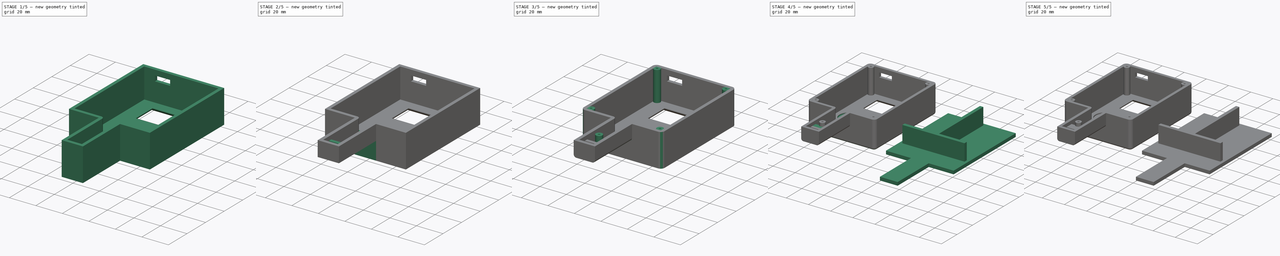
[diagram: build sequence overview — one tinted view per stage of 5, left to right]
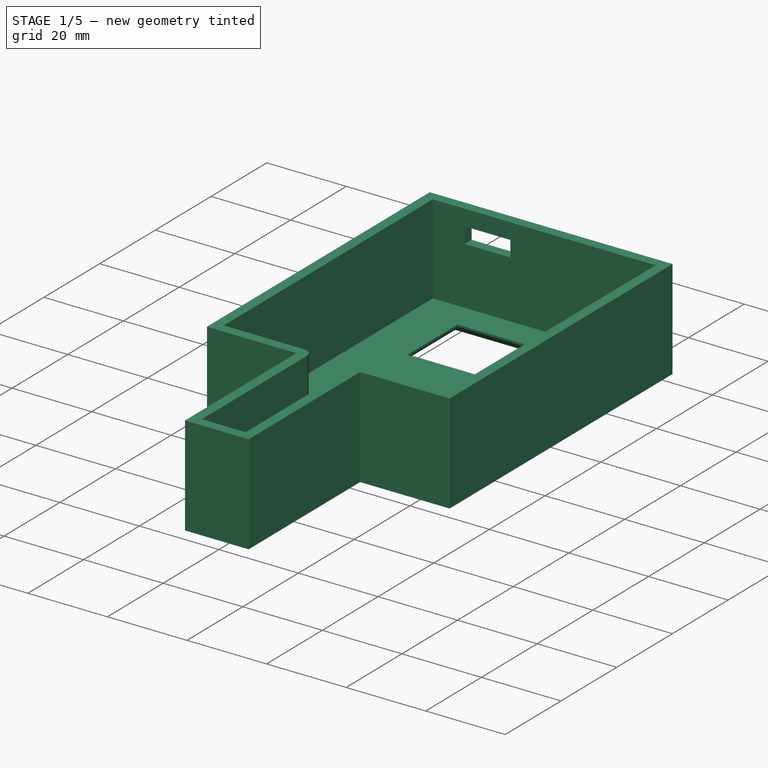
[diagram: stage 1 of 5 — iso view after this stage's code; geometry added in this stage tinted green]
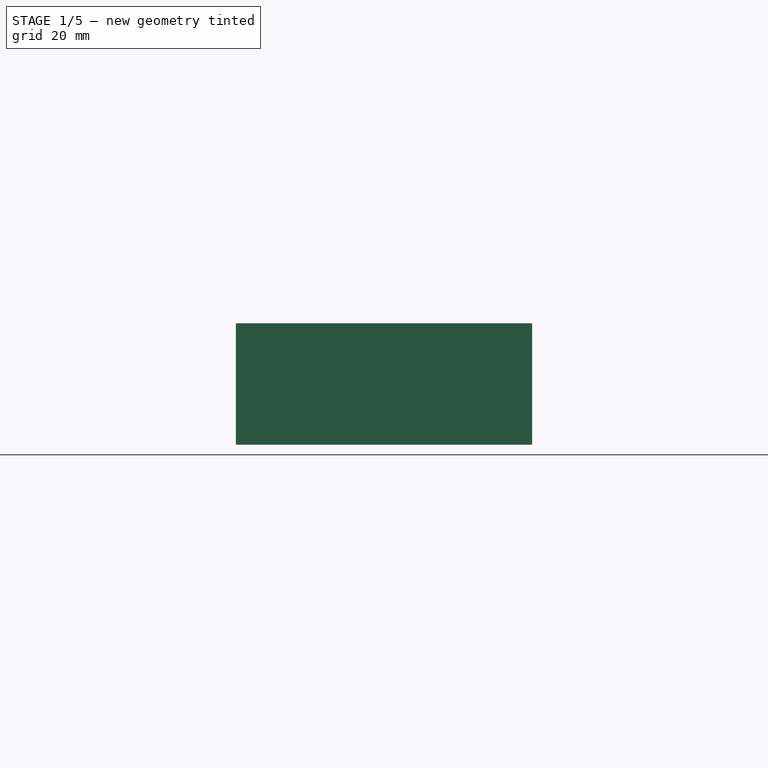
[diagram: stage 1 of 5 — front view after this stage's code; geometry added in this stage tinted green]
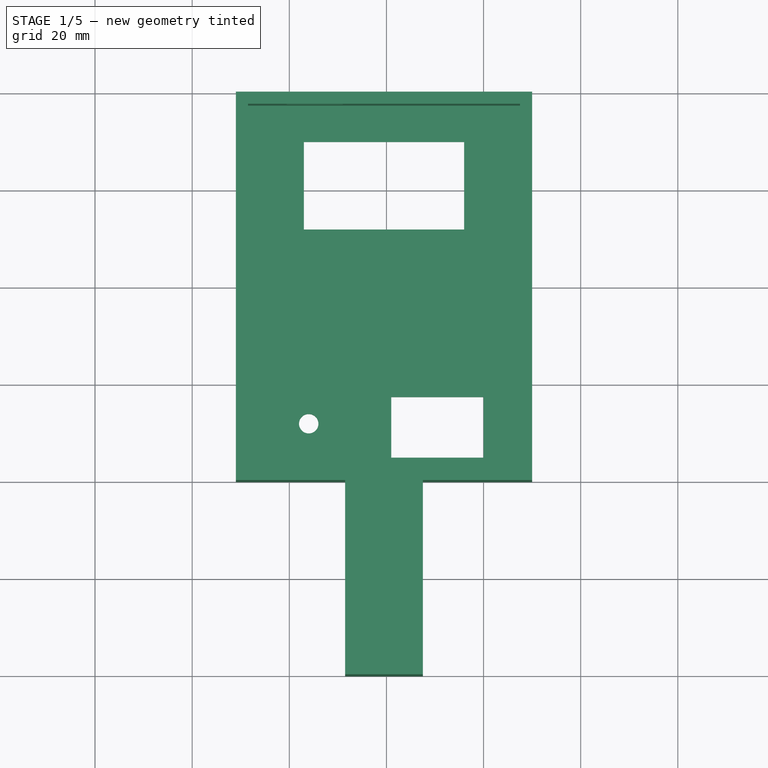
[diagram: stage 1 of 5 — top view after this stage's code; geometry added in this stage tinted green]
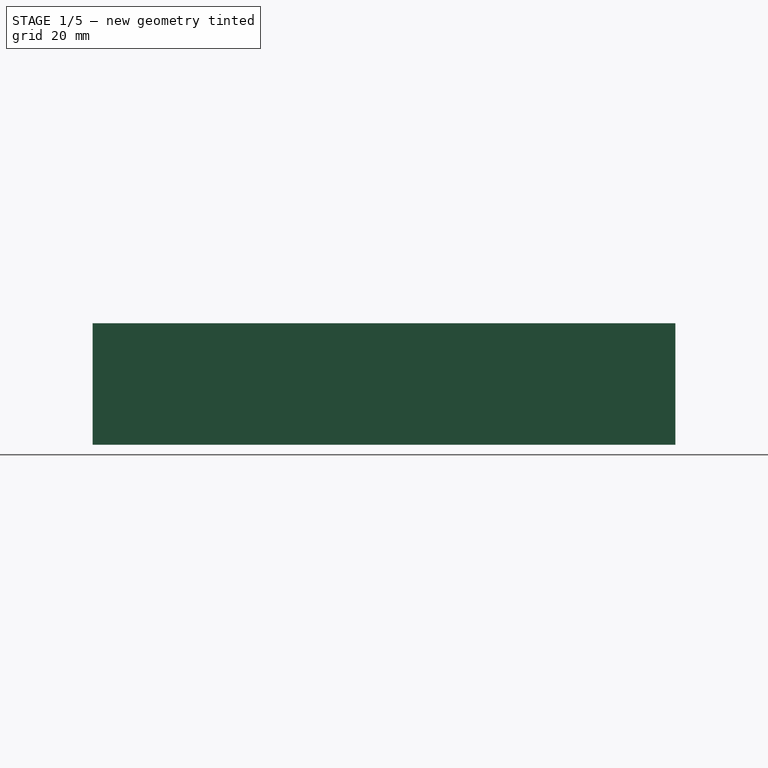
[diagram: stage 1 of 5 — right view after this stage's code; geometry added in this stage tinted green]
FCSTD DOCUMENT  (FreeCAD 0.21R33771 (Git))
Label: mip_tester
License: All rights reserved
LicenseURL: https://en.wikipedia.org/wiki/All_rights_reserved
objects: Sketcher::SketchObject×21, PartDesign::Pad×13, PartDesign::Pocket×11, PartDesign::Fillet×7, PartDesign::Body×4, App::Part×3, PartDesign::Thickness×1, PartDesign::Chamfer×1, PartDesign::ShapeBinder×1, PartDesign::FeatureBase×1, PartDesign::Hole×1
note: 95 computed .brp shape members not serialized (recipe doc carries the construction recipe); baked Part::Feature solids carry a one-line shape summary decoded from their .brp

FEATURE [PartDesign::Body] Body  label="Тело"
  Group = -> [Sketch,Pad,Sketch001,Pad001]
  Origin = -> Origin001
  Tip = -> Pad001
FEATURE [App::Part] Part
  Group = -> [Body]
  Origin = -> Origin
FEATURE [Sketcher::SketchObject] Sketch002
  FullyConstrained = true
  MapMode = 5
  Support = -> [XY_Plane003]
  sketch-geometry (8):
    g0: LineSegment StartX=-10 StartY=80 StartZ=0 EndX=-71 EndY=80 EndZ=0
    g1: LineSegment StartX=-71 StartY=80 StartZ=0 EndX=-71 EndY=0 EndZ=0
    g2: LineSegment StartX=-71 StartY=0 StartZ=0 EndX=-48.5 EndY=0 EndZ=0
    g3: LineSegment StartX=-10 StartY=0 StartZ=0 EndX=-10 EndY=80 EndZ=0
    g4: LineSegment StartX=-48.5 StartY=-40 StartZ=0 EndX=-32.5 EndY=-40 EndZ=0
    g5: LineSegment StartX=-32.5 StartY=-40 StartZ=0 EndX=-32.5 EndY=0 EndZ=0
    g6: LineSegment StartX=-48.5 StartY=0 StartZ=0 EndX=-48.5 EndY=-40 EndZ=0
    g7: LineSegment StartX=-32.5 StartY=0 StartZ=0 EndX=-10 EndY=0 EndZ=0
  constraints (24):
    c: Coincident(g0,g1)
    c: Coincident(g1,g2)
    c: Coincident(g7,g3)
    c: Coincident(g3,g0)
    c: Horizontal(g0)
    c: Horizontal(g2)
    c: Vertical(g1)
    c: Vertical(g3)
    c: DistanceX(g7,g-1) = 10
    c: DistanceY(g7) = 0
    c: DistanceX(g0,g0) = 61
    c: DistanceY(g3,g3) = 80
    c: Coincident(g4,g5)
    c: Coincident(g6,g4)
    c: Horizontal(g4)
    c: Vertical(g5)
    c: Vertical(g6)
    c: DistanceY(g5,g-1) = 0
    c: DistanceX(g6,g5) = 16
    c: Distance(g1,g6) = 22.5
    c: DistanceY(g6,g6) = 40
    c: DistanceY(g4,g-1) = 40
    c: Coincident(g6,g2)
    c: Coincident(g5,g7)
FEATURE [PartDesign::Pad] Pad002
  Direction = (0,0,1)
  Length = 25
  Length2 = 10
  Profile = -> Sketch002
  ReferenceAxis = -> Sketch002 [N_Axis]
  Type = 0
FEATURE [PartDesign::Thickness] Thickness
  Base = -> Pad002 [Face10]
  BaseFeature = -> Pad002
  Intersection = false
  Join = 0
  Mode = 0
  Reversed = true
  SupportTransform = false
  Value = 2.5
FEATURE [Sketcher::SketchObject] Sketch003
  ExternalGeometry = -> [Thickness]
  FullyConstrained = true
  MapMode = 5
  Placement = pos=(0,0,0) rot=(1,0,0;3.14159rad)
  Support = -> [Thickness]
  sketch-geometry (4):
    g0: LineSegment StartX=-57 StartY=-52 StartZ=0 EndX=-24 EndY=-52 EndZ=0
    g1: LineSegment StartX=-24 StartY=-52 StartZ=0 EndX=-24 EndY=-70 EndZ=0
    g2: LineSegment StartX=-24 StartY=-70 StartZ=0 EndX=-57 EndY=-70 EndZ=0
    g3: LineSegment StartX=-57 StartY=-70 StartZ=0 EndX=-57 EndY=-52 EndZ=0
  constraints (12):
    c: Coincident(g0,g1)
    c: Coincident(g1,g2)
    c: Coincident(g2,g3)
    c: Coincident(g3,g0)
    c: Horizontal(g0)
    c: Horizontal(g2)
    c: Vertical(g1)
    c: Vertical(g3)
    c: DistanceX(g0,g0) = 33
    c: DistanceY(g1,g1) = 18
    c: Distance(g2,g-3) = 14
    c: Distance(g2,g-4) = 10
FEATURE [PartDesign::Pocket] Pocket
  BaseFeature = -> Thickness
  Direction = (0,0,1)
  Length = 5
  Length2 = 5
  Profile = -> Sketch003
  ReferenceAxis = -> Sketch003 [N_Axis]
  Type = 0
FEATURE [PartDesign::Chamfer] Chamfer
  Angle = 45
  Base = -> Pocket [Edge18,Edge19,Edge16,Edge17]
  BaseFeature = -> Pocket
  ChamferType = 0
  FlipDirection = false
  Size = 2
  Size2 = 1
  SupportTransform = false
  UseAllEdges = false
FEATURE [Sketcher::SketchObject] Sketch004
  ExternalGeometry = -> [Chamfer]
  FullyConstrained = true
  MapMode = 5
  Placement = pos=(0,0,0) rot=(1,0,0;3.14159rad)
  Support = -> [Chamfer]
  sketch-geometry (4):
    g0: LineSegment StartX=-20 StartY=-17.5 StartZ=0 EndX=-39 EndY=-17.5 EndZ=0
    g1: LineSegment StartX=-39 StartY=-17.5 StartZ=0 EndX=-39 EndY=-5 EndZ=0
    g2: LineSegment StartX=-39 StartY=-5 StartZ=0 EndX=-20 EndY=-5 EndZ=0
    g3: LineSegment StartX=-20 StartY=-5 StartZ=0 EndX=-20 EndY=-17.5 EndZ=0
  constraints (12):
    c: Coincident(g0,g1)
    c: Coincident(g1,g2)
    c: Coincident(g2,g3)
    c: Coincident(g3,g0)
    c: Horizontal(g0)
    c: Horizontal(g2)
    c: Vertical(g1)
    c: Vertical(g3)
    c: DistanceX(g2,g2) = 19
    c: DistanceY(g1,g1) = 12.5
    c: Distance(g2,g-3) = 10
    c: Distance(g2,g-4) = 5
FEATURE [PartDesign::Pocket] Pocket001  label="on/off"
  BaseFeature = -> Chamfer
  Direction = (0,0,1)
  Length = 5
  Length2 = 5
  Profile = -> Sketch004
  ReferenceAxis = -> Sketch004 [N_Axis]
  Type = 0
FEATURE [Sketcher::SketchObject] Sketch005
  ExternalGeometry = -> [Pocket001]
  FullyConstrained = true
  MapMode = 5
  Placement = pos=(0,0,0) rot=(1,0,0;3.14159rad)
  Support = -> [Pocket001]
  sketch-geometry (1):
    g0: Circle CenterX=-56 CenterY=-12 CenterZ=0 NormalX=0 NormalY=0 NormalZ=1 AngleXU=0 Radius=2
  constraints (3):
    c: Diameter(g0) = 4
    c: Distance(g0,g-3) = 15
    c: Distance(g0,g-4) = 12
FEATURE [PartDesign::Pocket] Pocket002  label="button"
  BaseFeature = -> Pocket001
  Direction = (0,0,1)
  Length = 5
  Length2 = 5
  Profile = -> Sketch005
  ReferenceAxis = -> Sketch005 [N_Axis]
  Type = 0
FEATURE [Sketcher::SketchObject] Sketch006
  ExternalGeometry = -> [Pocket002]
  FullyConstrained = true
  MapMode = 5
  Placement = pos=(0,77.5,0) rot=(1,0,0;1.5708rad)
  Support = -> [Pocket002]
  sketch-geometry (4):
    g0: LineSegment StartX=-60.5 StartY=21 StartZ=0 EndX=-49 EndY=21 EndZ=0
    g1: LineSegment StartX=-49 StartY=21 StartZ=0 EndX=-49 EndY=17 EndZ=0
    g2: LineSegment StartX=-49 StartY=17 StartZ=0 EndX=-60.5 EndY=17 EndZ=0
    g3: LineSegment StartX=-60.5 StartY=17 StartZ=0 EndX=-60.5 EndY=21 EndZ=0
  constraints (12):
    c: Coincident(g0,g1)
    c: Coincident(g1,g2)
    c: Coincident(g2,g3)
    c: Coincident(g3,g0)
    c: Horizontal(g0)
    c: Horizontal(g2)
    c: Vertical(g1)
    c: Vertical(g3)
    c: DistanceX(g0,g0) = 11.5
    c: DistanceY(g1,g1) = 4
    c: Distance(g0,g-3) = 4
    c: Distance(g0,g-5) = 8
FEATURE [PartDesign::Pocket] Pocket003  label="programPort"
  BaseFeature = -> Pocket002
  Direction = (0,1,-2e-16)
  Length = 5
  Length2 = 5
  Profile = -> Sketch006
  ReferenceAxis = -> Sketch006 [N_Axis]
  Type = 0
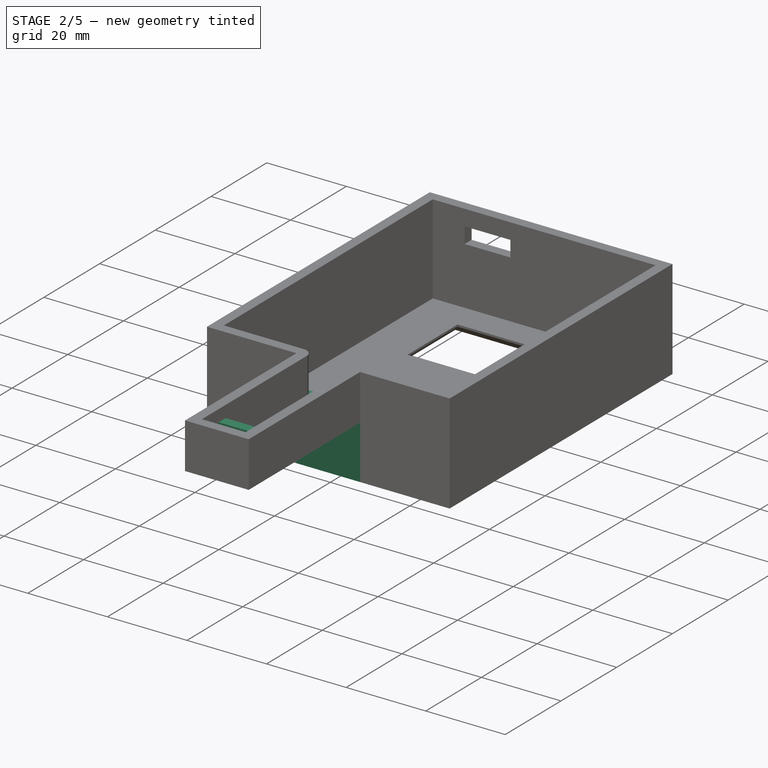
[diagram: stage 2 of 5 — iso view after this stage's code; geometry added in this stage tinted green]
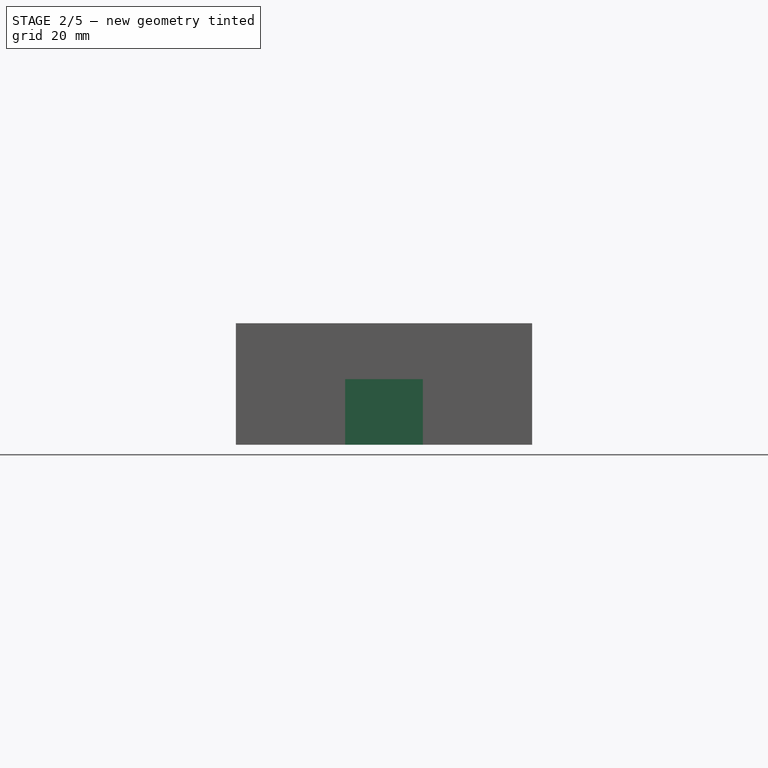
[diagram: stage 2 of 5 — front view after this stage's code; geometry added in this stage tinted green]
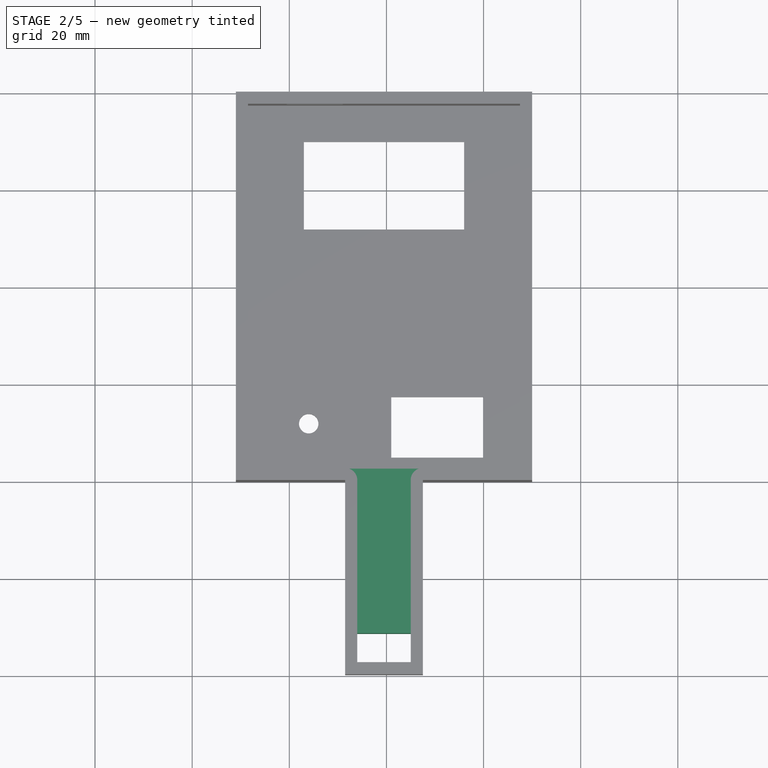
[diagram: stage 2 of 5 — top view after this stage's code; geometry added in this stage tinted green]
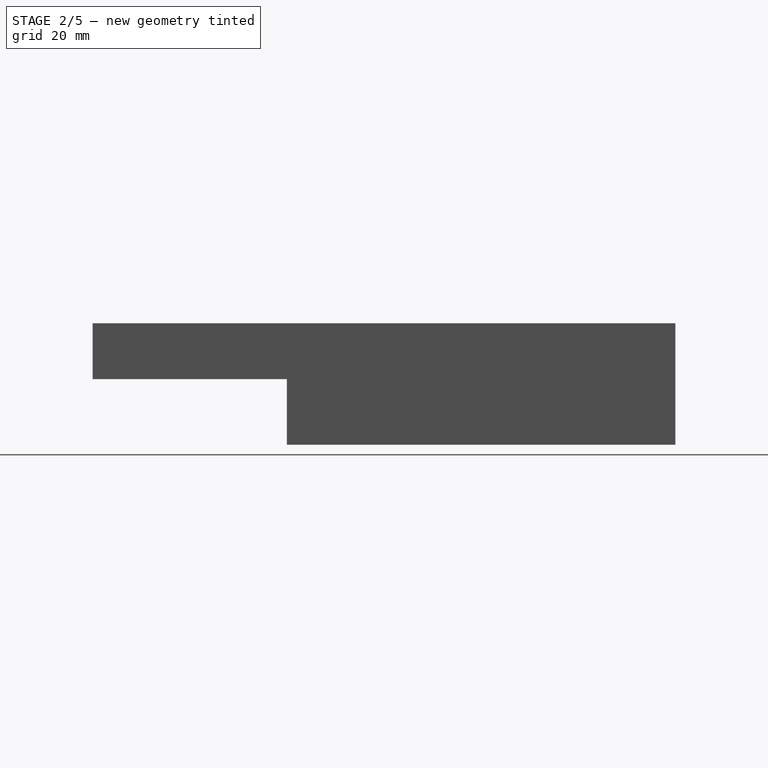
[diagram: stage 2 of 5 — right view after this stage's code; geometry added in this stage tinted green]
FEATURE [Sketcher::SketchObject] Sketch007
  ExternalGeometry = -> [Pocket003]
  FullyConstrained = true
  MapMode = 5
  Placement = pos=(0,0,0) rot=(1,0,0;3.14159rad)
  Support = -> [Pocket003]
  sketch-geometry (1):
    g0: Circle CenterX=-56 CenterY=-33 CenterZ=0 NormalX=0 NormalY=0 NormalZ=1 AngleXU=0 Radius=8.75
  constraints (3):
    c: Distance(g0,g-4) = 47
    c: Diameter(g0) = 17.5
    c: Distance(g0,g-3) = 15
FEATURE [PartDesign::Pocket] Pocket004
  BaseFeature = -> Pocket003
  Direction = (0,0,1)
  Length = 1
  Length2 = 5
  Profile = -> Sketch007
  ReferenceAxis = -> Sketch007 [N_Axis]
  Type = 0
FEATURE [Sketcher::SketchObject] Sketch010
  ExternalGeometry = -> [Pad003]
  FullyConstrained = true
  MapMode = 5
  Placement = pos=(0,0,3) rot=(0,0,1;0rad)
  Support = -> [Pad003]
  sketch-geometry (8):
    g0: LineSegment StartX=30.5 StartY=77.5 StartZ=0 EndX=33.5 EndY=77.5 EndZ=0
    g1: LineSegment StartX=33.5 StartY=77.5 StartZ=0 EndX=33.5 EndY=20.5 EndZ=0
    g2: LineSegment StartX=30.5 StartY=20.5 StartZ=0 EndX=30.5 EndY=77.5 EndZ=0
    g3: LineSegment StartX=2.5 StartY=17.5 StartZ=0 EndX=58.5 EndY=17.5 EndZ=0
    g4: LineSegment StartX=58.5 StartY=17.5 StartZ=0 EndX=58.5 EndY=20.5 EndZ=0
    g5: LineSegment StartX=58.5 StartY=20.5 StartZ=0 EndX=33.5 EndY=20.5 EndZ=0
    g6: LineSegment StartX=2.5 StartY=20.5 StartZ=0 EndX=2.5 EndY=17.5 EndZ=0
    g7: LineSegment StartX=2.5 StartY=20.5 StartZ=0 EndX=30.5 EndY=20.5 EndZ=0
  constraints (24):
    c: Coincident(g0,g1)
    c: Coincident(g2,g0)
    c: Horizontal(g0)
    c: Vertical(g1)
    c: Vertical(g2)
    c: Distance(g2,g-2) = 30.5
    c: Distance(g2,g-5) = 20.5
    c: DistanceY(g2,g2) = 57
    c: DistanceX(g0,g0) = 3
    c: Coincident(g3,g4)
    c: Coincident(g4,g5)
    c: Coincident(g6,g3)
    c: Horizontal(g3)
    c: Horizontal(g5)
    c: Vertical(g4)
    c: Vertical(g6)
    c: DistanceY(g4,g4) = 3
    c: DistanceY(g-5,g3) = 17.5
    c: DistanceX(g-1,g3) = 2.5
    c: Distance(g3) = 56
    c: Coincident(g7,g6)
    c: Coincident(g7,g2)
    c: Horizontal(g7)
    c: Coincident(g1,g5)
FEATURE [Sketcher::SketchObject] Sketch011
  ExternalGeometry = -> [Pocket004]
  FullyConstrained = true
  MapMode = 5
  Placement = pos=(-48.5,0,0) rot=(0.57735,-0.57735,-0.57735;2.0944rad)
  Support = -> [Pocket004]
  sketch-geometry (4):
    g0: LineSegment StartX=3.65219e-11 StartY=16 StartZ=0 EndX=40 EndY=16 EndZ=0
    g1: LineSegment StartX=40 StartY=16 StartZ=0 EndX=40 EndY=0 EndZ=0
    g2: LineSegment StartX=40 StartY=0 StartZ=0 EndX=3.65219e-11 EndY=0 EndZ=0
    g3: LineSegment StartX=3.65219e-11 StartY=0 StartZ=0 EndX=3.65219e-11 EndY=16 EndZ=0
  constraints (11):
    c: Coincident(g0,g1)
    c: Coincident(g1,g2)
    c: Coincident(g2,g3)
    c: Coincident(g3,g0)
    c: Horizontal(g0)
    c: Horizontal(g2)
    c: Vertical(g1)
    c: Vertical(g3)
    c: Coincident(g1,g-4)
    c: Equal(g2,g-4)
    c: DistanceY(g1,g1) = 16
FEATURE [PartDesign::Pocket] Pocket005
  BaseFeature = -> Pocket004
  Direction = (1,0,0)
  Length = 5
  Length2 = 5
  Profile = -> Sketch011
  ReferenceAxis = -> Sketch011 [N_Axis]
  Type = 1
FEATURE [Sketcher::SketchObject] Sketch012
  ExternalGeometry = -> [Pocket005]
  FullyConstrained = true
  MapMode = 5
  Placement = pos=(0,0,16) rot=(1,0,0;3.14159rad)
  Support = -> [Pocket005]
  sketch-geometry (4):
    g0: LineSegment StartX=-48.5 StartY=3.65219e-11 StartZ=0 EndX=-32.5 EndY=3.65219e-11 EndZ=0
    g1: LineSegment StartX=-32.5 StartY=3.65219e-11 StartZ=0 EndX=-32.5 EndY=40 EndZ=0
    g2: LineSegment StartX=-32.5 StartY=40 StartZ=0 EndX=-48.5 EndY=40 EndZ=0
    g3: LineSegment StartX=-48.5 StartY=40 StartZ=0 EndX=-48.5 EndY=3.65219e-11 EndZ=0
  constraints (11):
    c: Coincident(g0,g1)
    c: Coincident(g1,g2)
    c: Coincident(g2,g3)
    c: Coincident(g3,g0)
    c: Horizontal(g0)
    c: Horizontal(g2)
    c: Vertical(g1)
    c: Vertical(g3)
    c: Coincident(g1,g-4)
    c: Equal(g2,g-4)
    c: Equal(g3,g-5)
FEATURE [PartDesign::Pad] Pad005
  BaseFeature = -> Pocket005
  Direction = (0,0,-1)
  Length = 2.5
  Length2 = 10
  Profile = -> Sketch012
  ReferenceAxis = -> Sketch012 [N_Axis]
  Type = 0
FEATURE [Sketcher::SketchObject] Sketch013
  ExternalGeometry = -> [Pad005]
  FullyConstrained = true
  MapMode = 5
  Placement = pos=(0,-3.65219e-11,0) rot=(1,0,0;1.5708rad)
  Support = -> [Pad005]
  sketch-geometry (4):
    g0: LineSegment StartX=-48.5 StartY=13.5 StartZ=0 EndX=-32.5 EndY=13.5 EndZ=0
    g1: LineSegment StartX=-32.5 StartY=13.5 StartZ=0 EndX=-32.5 EndY=0 EndZ=0
    g2: LineSegment StartX=-32.5 StartY=0 StartZ=0 EndX=-48.5 EndY=0 EndZ=0
    g3: LineSegment StartX=-48.5 StartY=0 StartZ=0 EndX=-48.5 EndY=13.5 EndZ=0
  constraints (11):
    c: Coincident(g0,g1)
    c: Coincident(g1,g2)
    c: Coincident(g2,g3)
    c: Coincident(g3,g0)
    c: Horizontal(g0)
    c: Horizontal(g2)
    c: Vertical(g1)
    c: Vertical(g3)
    c: Coincident(g2,g-8)
    c: Equal(g2,g-8)
    c: Equal(g1,g-3)
FEATURE [PartDesign::Pad] Pad006
  BaseFeature = -> Pad005
  Direction = (0,-1,2e-16)
  Length = 2.5
  Length2 = 10
  Profile = -> Sketch013
  ReferenceAxis = -> Sketch013 [N_Axis]
  Reversed = true
  Type = 0
FEATURE [PartDesign::Pad] Pad007
  BaseFeature = -> Pad006
  Direction = (0,2e-16,1)
  Length = 2.5
  Length2 = 10
  Profile = -> Pad006 [Face50]
  Type = 0
FEATURE [Sketcher::SketchObject] Sketch014
  ExternalGeometry = -> [Pad007]
  FullyConstrained = true
  MapMode = 5
  Placement = pos=(0,0,13.5) rot=(1,0,0;3.14159rad)
  Support = -> [Pad007]
  sketch-geometry (4):
    g0: LineSegment StartX=-46 StartY=37.5 StartZ=0 EndX=-35 EndY=37.5 EndZ=0
    g1: LineSegment StartX=-35 StartY=37.5 StartZ=0 EndX=-35 EndY=31.5 EndZ=0
    g2: LineSegment StartX=-35 StartY=31.5 StartZ=0 EndX=-46 EndY=31.5 EndZ=0
    g3: LineSegment StartX=-46 StartY=31.5 StartZ=0 EndX=-46 EndY=37.5 EndZ=0
  constraints (12):
    c: Coincident(g0,g1)
    c: Coincident(g1,g2)
    c: Coincident(g2,g3)
    c: Coincident(g3,g0)
    c: Horizontal(g0)
    c: Horizontal(g2)
    c: Vertical(g1)
    c: Vertical(g3)
    c: DistanceX(g2,g2) = 11
    c: DistanceY(g1,g1) = 6
    c: Distance(g0,g-5) = 2.5
    c: Distance(g0,g-3) = 2.5
FEATURE [PartDesign::Pocket] Pocket006
  BaseFeature = -> Pad007
  Direction = (0,0,1)
  Length = 2.5
  Length2 = 5
  Profile = -> Sketch014
  ReferenceAxis = -> Sketch014 [N_Axis]
  Type = 0
FEATURE [Sketcher::SketchObject] Sketch015
  ExternalGeometry = -> [Pocket006]
  FullyConstrained = true
  MapMode = 5
  Placement = pos=(0,0,16) rot=(0,0,1;0rad)
  Support = -> [Pocket006]
  sketch-geometry (4):
    g0: LineSegment StartX=-46 StartY=-29 StartZ=0 EndX=-35 EndY=-29 EndZ=0
    g1: LineSegment StartX=-35 StartY=-29 StartZ=0 EndX=-35 EndY=-31.5 EndZ=0
    g2: LineSegment StartX=-35 StartY=-31.5 StartZ=0 EndX=-46 EndY=-31.5 EndZ=0
    g3: LineSegment StartX=-46 StartY=-31.5 StartZ=0 EndX=-46 EndY=-29 EndZ=0
  constraints (11):
    c: Coincident(g0,g1)
    c: Coincident(g1,g2)
    c: Coincident(g2,g3)
    c: Coincident(g3,g0)
    c: Horizontal(g0)
    c: Horizontal(g2)
    c: Vertical(g1)
    c: Vertical(g3)
    c: Coincident(g1,g-4)
    c: Equal(g2,g-4)
    c: DistanceY(g1,g1) = 2.5
FEATURE [PartDesign::Pad] Pad008
  BaseFeature = -> Pocket006
  Direction = (0,0,1)
  Length = 6
  Length2 = 10
  Profile = -> Sketch015
  ReferenceAxis = -> Sketch015 [N_Axis]
  Type = 0
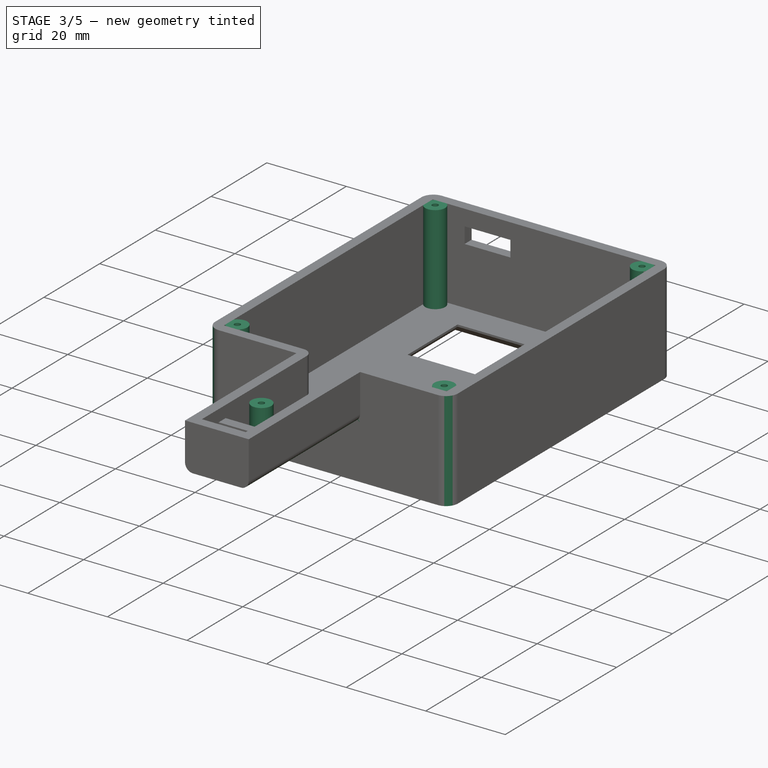
[diagram: stage 3 of 5 — iso view after this stage's code; geometry added in this stage tinted green]
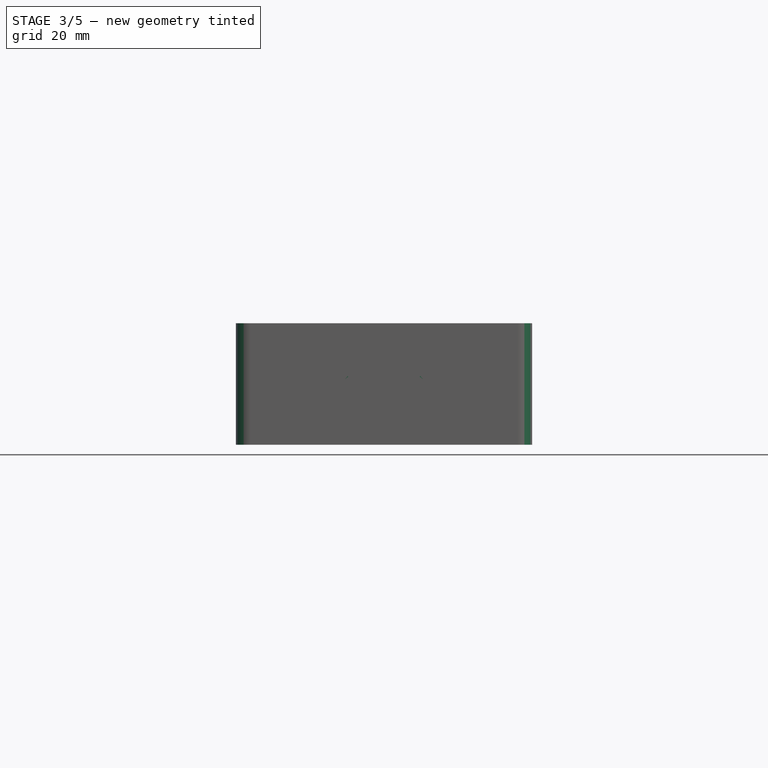
[diagram: stage 3 of 5 — front view after this stage's code; geometry added in this stage tinted green]
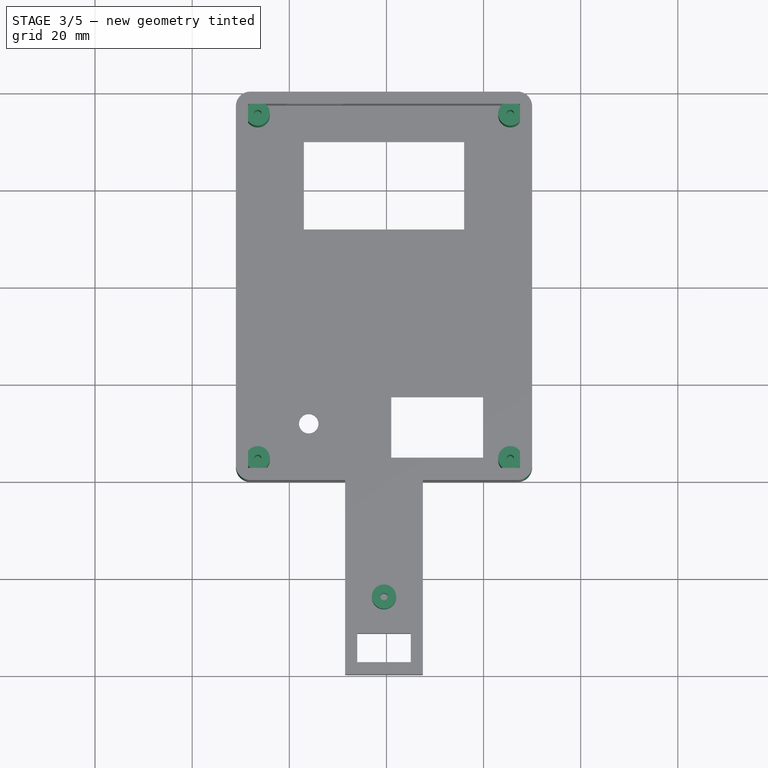
[diagram: stage 3 of 5 — top view after this stage's code; geometry added in this stage tinted green]
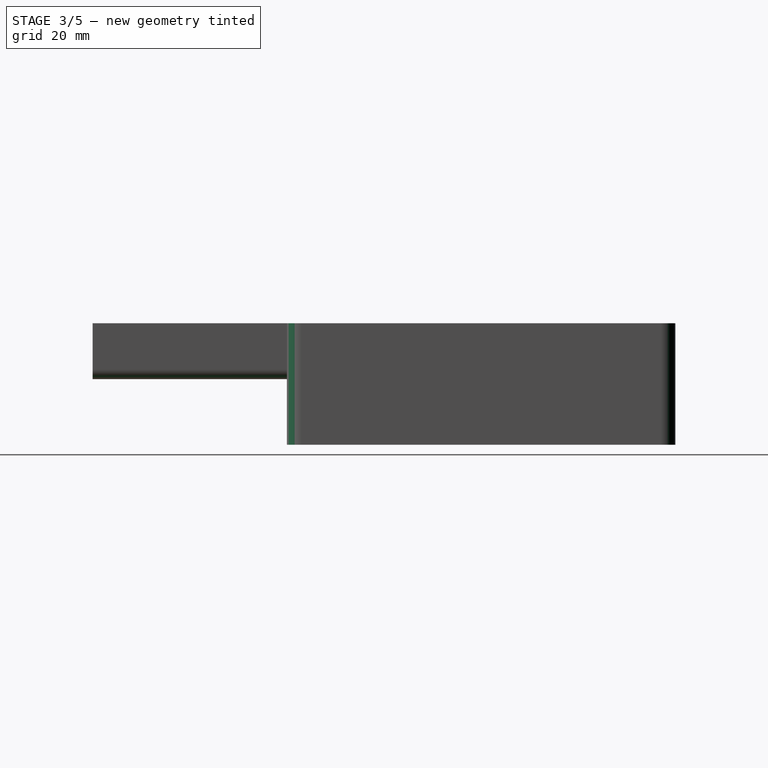
[diagram: stage 3 of 5 — right view after this stage's code; geometry added in this stage tinted green]
FEATURE [Sketcher::SketchObject] Sketch016
  ExternalGeometry = -> [Pad008]
  FullyConstrained = true
  MapMode = 5
  Placement = pos=(0,0,2.5) rot=(0,0,1;0rad)
  Support = -> [Pad008]
  sketch-geometry (4):
    g0: Circle CenterX=-66.5 CenterY=75.5 CenterZ=0 NormalX=0 NormalY=0 NormalZ=1 AngleXU=0 Radius=2.5
    g1: Circle CenterX=-14.5 CenterY=75.5 CenterZ=0 NormalX=0 NormalY=0 NormalZ=1 AngleXU=0 Radius=2.5
    g2: Circle CenterX=-66.5 CenterY=4.5 CenterZ=0 NormalX=0 NormalY=0 NormalZ=1 AngleXU=0 Radius=2.5
    g3: Circle CenterX=-14.5 CenterY=4.5 CenterZ=0 NormalX=0 NormalY=0 NormalZ=1 AngleXU=0 Radius=2.5
  constraints (12):
    c: Diameter(g0) = 5
    c: Diameter(g1) = 5
    c: Diameter(g3) = 5
    c: Diameter(g2) = 5
    c: Distance(g0,g-8) = 2
    c: Distance(g0,g-9) = 2
    c: Distance(g1,g-10) = 2
    c: Distance(g1,g-8) = 2
    c: Distance(g3,g-10) = 2
    c: Distance(g3,g-11) = 2
    c: Distance(g2,g-9) = 2
    c: Distance(g2,g-12) = 2
FEATURE [PartDesign::Pad] Pad009
  BaseFeature = -> Pad008
  Direction = (0,0,1)
  Length = 22.5
  Length2 = 10
  Profile = -> Sketch016
  ReferenceAxis = -> Sketch016 [N_Axis]
  Type = 0
FEATURE [Sketcher::SketchObject] Sketch017
  ExternalGeometry = -> [Pad009]
  FullyConstrained = true
  MapMode = 5
  Placement = pos=(0,0,25) rot=(0,0,1;0rad)
  Support = -> [Pad009]
  sketch-geometry (4):
    g0: Circle CenterX=-66.5 CenterY=4.5 CenterZ=0 NormalX=0 NormalY=0 NormalZ=1 AngleXU=0 Radius=0.75
    g1: Circle CenterX=-14.5 CenterY=4.5 CenterZ=0 NormalX=0 NormalY=0 NormalZ=1 AngleXU=0 Radius=0.75
    g2: Circle CenterX=-14.5 CenterY=75.5 CenterZ=0 NormalX=0 NormalY=0 NormalZ=1 AngleXU=0 Radius=0.75
    g3: Circle CenterX=-66.5 CenterY=75.5 CenterZ=0 NormalX=0 NormalY=0 NormalZ=1 AngleXU=0 Radius=0.75
  constraints (8):
    c: Diameter(g3) = 1.5
    c: Equal(g3,g2)
    c: Equal(g2,g1)
    c: Equal(g1,g0)
    c: Coincident(g3,g-3)
    c: Coincident(g0,g-6)
    c: Coincident(g1,g-5)
    c: Coincident(g2,g-4)
FEATURE [PartDesign::Pocket] Pocket007
  BaseFeature = -> Pad009
  Direction = (0,0,-1)
  Length = 18
  Length2 = 5
  Profile = -> Sketch017
  ReferenceAxis = -> Sketch017 [N_Axis]
  Type = 0
FEATURE [Sketcher::SketchObject] Sketch018
  ExternalGeometry = -> [Pocket007]
  FullyConstrained = true
  MapMode = 5
  Placement = pos=(0,0,16) rot=(0,0,1;0rad)
  Support = -> [Pocket007]
  sketch-geometry (2):
    g0: Circle CenterX=-40.5 CenterY=-24 CenterZ=0 NormalX=0 NormalY=0 NormalZ=1 AngleXU=0 Radius=2.5
    g1: Circle CenterX=-40.5 CenterY=-24 CenterZ=0 NormalX=0 NormalY=0 NormalZ=1 AngleXU=0 Radius=0.75
  constraints (6):
    c: Diameter(g0) = 5
    c: Distance(g0,g-4) = 5
    c: Distance(g0,g-3) = 5.5
    c: Distance(g-4) = 11
    c: Diameter(g1) = 1.5
    c: Coincident(g1,g0)
FEATURE [PartDesign::Pad] Pad010
  BaseFeature = -> Pocket007
  Direction = (0,0,1)
  Length = 9
  Length2 = 10
  Profile = -> Sketch018
  ReferenceAxis = -> Sketch018 [N_Axis]
  Type = 0
FEATURE [PartDesign::Fillet] Fillet001
  Base = -> Pad010 [Edge29]
  BaseFeature = -> Pad010
  Radius = 3
  SupportTransform = false
  UseAllEdges = false
FEATURE [PartDesign::Fillet] Fillet002
  Base = -> Fillet001 [Edge29]
  BaseFeature = -> Fillet001
  Radius = 3
  SupportTransform = false
  UseAllEdges = false
FEATURE [PartDesign::Fillet] Fillet003
  Base = -> Fillet002 [Edge32,Edge34,Edge35]
  BaseFeature = -> Fillet002
  Radius = 3
  SupportTransform = false
  UseAllEdges = false
FEATURE [PartDesign::Body] Body002  label="Тело002"
  BaseFeature = -> Pad004
  Group = -> [BaseFeature,Sketch019,Pocket008,Hole,Fillet,Fillet004]
  Origin = -> Origin005
  Tip = -> Fillet004
FEATURE [App::Part] Part002
  Group = -> [Body002]
  Origin = -> Origin004
  Placement = pos=(4,0,0) rot=(0,0,1;0rad)
FEATURE [PartDesign::Fillet] Fillet005
  Base = -> Fillet003 [Edge113,Edge124]
  BaseFeature = -> Fillet003
  Radius = 2
  SupportTransform = false
  UseAllEdges = false
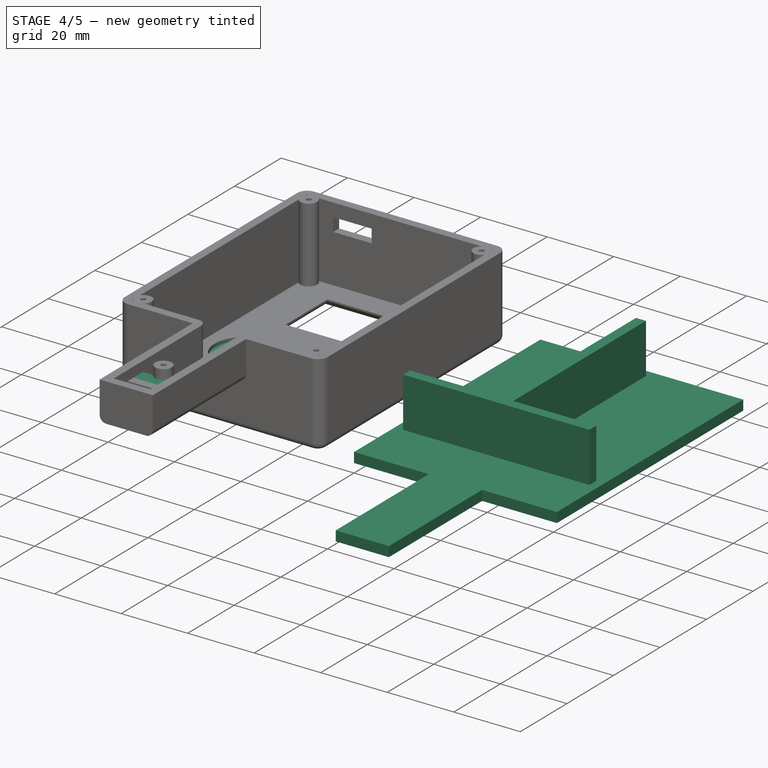
[diagram: stage 4 of 5 — iso view after this stage's code; geometry added in this stage tinted green]
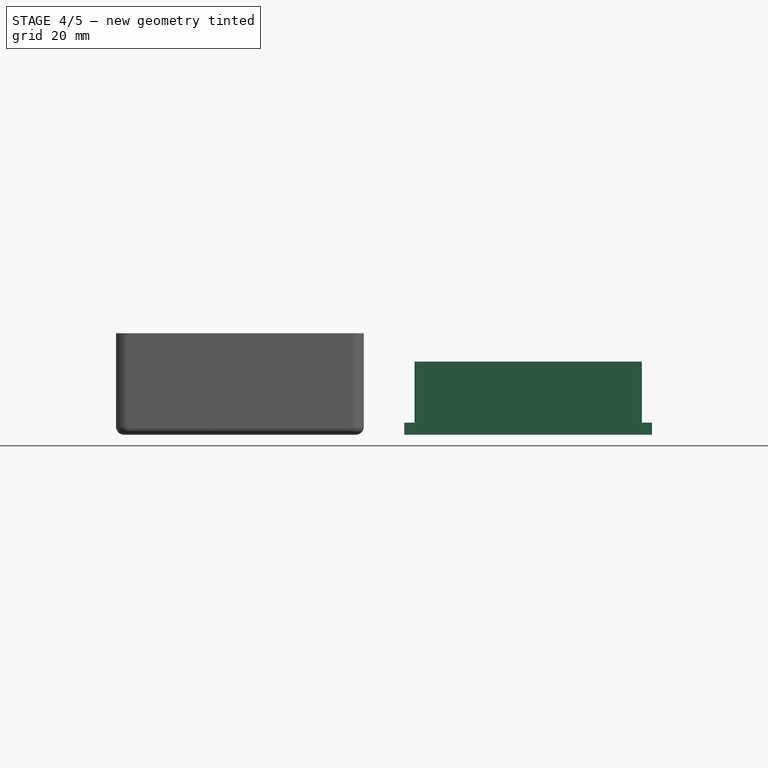
[diagram: stage 4 of 5 — front view after this stage's code; geometry added in this stage tinted green]
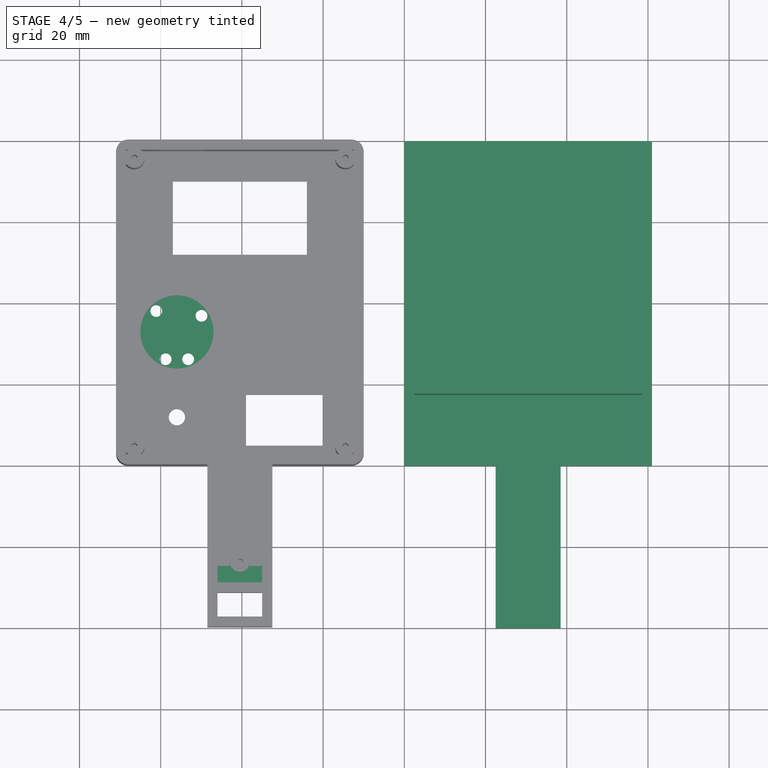
[diagram: stage 4 of 5 — top view after this stage's code; geometry added in this stage tinted green]
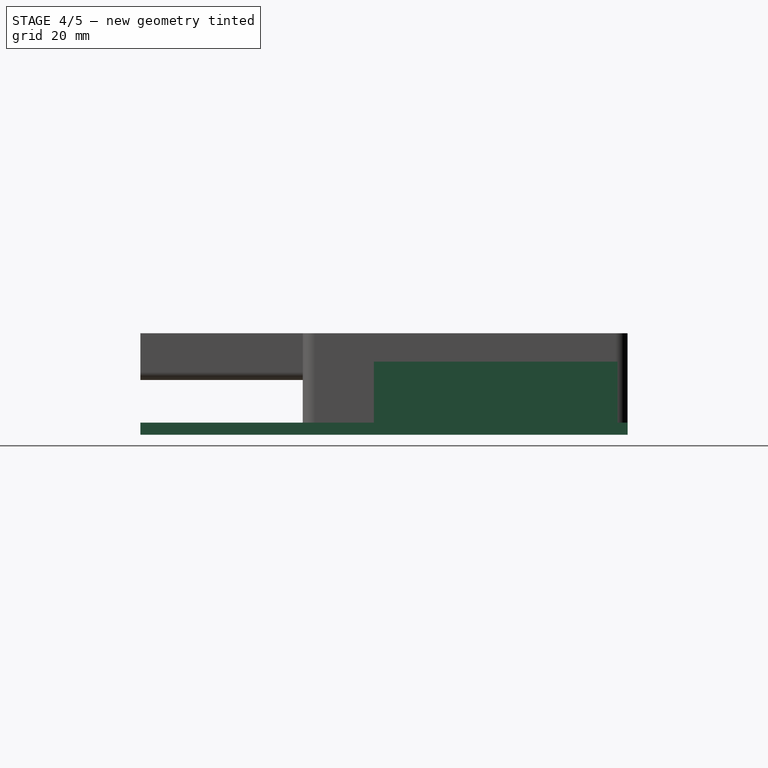
[diagram: stage 4 of 5 — right view after this stage's code; geometry added in this stage tinted green]
FEATURE [Sketcher::SketchObject] Sketch009
  FullyConstrained = true
  MapMode = 5
  Support = -> [XY_Plane006]
  sketch-geometry (8):
    g0: LineSegment StartX=0 StartY=0 StartZ=0 EndX=22.5 EndY=0 EndZ=0
    g1: LineSegment StartX=61 StartY=0 StartZ=0 EndX=61 EndY=80 EndZ=0
    g2: LineSegment StartX=61 StartY=80 StartZ=0 EndX=0 EndY=80 EndZ=0
    g3: LineSegment StartX=0 StartY=80 StartZ=0 EndX=0 EndY=0 EndZ=0
    g4: LineSegment StartX=22.5 StartY=-40 StartZ=0 EndX=38.5 EndY=-40 EndZ=0
    g5: LineSegment StartX=38.5 StartY=-40 StartZ=0 EndX=38.5 EndY=0 EndZ=0
    g6: LineSegment StartX=22.5 StartY=0 StartZ=0 EndX=22.5 EndY=-40 EndZ=0
    g7: LineSegment StartX=38.5 StartY=0 StartZ=0 EndX=61 EndY=0 EndZ=0
  constraints (24):
    c: Coincident(g7,g1)
    c: Coincident(g1,g2)
    c: Coincident(g2,g3)
    c: Coincident(g3,g0)
    c: Horizontal(g0)
    c: Horizontal(g2)
    c: Vertical(g1)
    c: Vertical(g3)
    c: Coincident(g0,g-1)
    c: Distance(g2) = 61
    c: Distance(g1) = 80
    c: Coincident(g4,g5)
    c: Coincident(g6,g4)
    c: Horizontal(g4)
    c: Vertical(g5)
    c: Vertical(g6)
    c: Distance(g4) = 16
    c: Distance(g5) = 40
    c: DistanceX(g-2,g4) = 22.5
    c: Coincident(g7,g5)
    c: DistanceY(g5,g1) = 0
    c: DistanceY(g0,g5) = 0
    c: DistanceX(g0,g4) = 0
    c: DistanceY(g6,g0) = 0
FEATURE [PartDesign::Pad] Pad003
  Direction = (0,0,1)
  Length = 3
  Length2 = 10
  Profile = -> Sketch009
  ReferenceAxis = -> Sketch009 [N_Axis]
  Type = 0
FEATURE [PartDesign::ShapeBinder] CopyPad004
  TraceSupport = false
FEATURE [Sketcher::SketchObject] Sketch019
  FullyConstrained = true
  Placement = pos=(0,0,0) rot=(1,0,0;3.14159rad)
  sketch-geometry (5):
    g0: Circle CenterX=30.5 CenterY=24 CenterZ=0 NormalX=0 NormalY=0 NormalZ=1 AngleXU=0 Radius=1
    g1: Circle CenterX=4.5 CenterY=-4.5 CenterZ=0 NormalX=0 NormalY=0 NormalZ=1 AngleXU=0 Radius=1
    g2: Circle CenterX=56.5 CenterY=-4.5 CenterZ=0 NormalX=0 NormalY=0 NormalZ=1 AngleXU=0 Radius=1
    g3: Circle CenterX=4.5 CenterY=-75.5 CenterZ=0 NormalX=0 NormalY=0 NormalZ=1 AngleXU=0 Radius=1
    g4: Circle CenterX=56.5 CenterY=-75.5 CenterZ=0 NormalX=0 NormalY=0 NormalZ=1 AngleXU=0 Radius=1
  constraints (15):
    c: Diameter(g0) = 2
    c: Equal(g1,g2)
    c: Equal(g2,g0)
    c: Equal(g0,g3)
    c: Equal(g3,g4)
    c: DistanceX(g-2,g1) = 4.5
    c: DistanceY(g-1,g1) = -4.5
    c: DistanceX(g-2,g2) = 56.5
    c: DistanceY(g-1,g2) = -4.5
    c: DistanceX(g-2,g3) = 4.5
    c: DistanceY(g-1,g3) = -75.5
    c: DistanceY(g-1,g4) = -75.5
    c: DistanceX(g-2,g4) = 56.5
    c: DistanceY(g-1,g0) = 24
    c: DistanceX(g-2,g0) = 30.5
FEATURE [PartDesign::Pad] Pad004
  BaseFeature = -> Pad003
  Direction = (0,0,1)
  Length = 15
  Length2 = 10
  Profile = -> Sketch010
  ReferenceAxis = -> Sketch010 [N_Axis]
  Type = 0
FEATURE [PartDesign::Body] Pad004Body
  Group = -> [Sketch009,Pad003,Sketch010,Pad004]
  Origin = -> Origin006
  Tip = -> Pad004
FEATURE [Sketcher::SketchObject] Sketch020
  ExternalGeometry = -> [Fillet005]
  FullyConstrained = true
  MapMode = 5
  Placement = pos=(0,0,1) rot=(1,0,0;3.14159rad)
  Support = -> [Fillet005]
  sketch-geometry (11):
    g0: Circle CenterX=-58.7745 CenterY=-26.3019 CenterZ=0 NormalX=0 NormalY=0 NormalZ=1 AngleXU=0 Radius=1.45
    g1: Circle CenterX=-53.2255 CenterY=-26.3019 CenterZ=0 NormalX=0 NormalY=0 NormalZ=1 AngleXU=0 Radius=1.45
    g2: Circle CenterX=-49.9543 CenterY=-37.0015 CenterZ=0 NormalX=0 NormalY=0 NormalZ=1 AngleXU=0 Radius=1.45
    g3: Circle CenterX=-61.0816 CenterY=-38.1711 CenterZ=0 NormalX=0 NormalY=0 NormalZ=1 AngleXU=0 Radius=1.45
    g4: Circle CenterX=-56 CenterY=-33 CenterZ=0 NormalX=0 NormalY=0 NormalZ=1 AngleXU=0 Radius=7.25
    g5: LineSegment StartX=-57.7445 StartY=-41.5743 StartZ=0 EndX=-54.2555 EndY=-24.4257 EndZ=0
    g6: LineSegment StartX=-56 StartY=-33 StartZ=0 EndX=-61.0816 EndY=-38.1711 EndZ=0
    g7: LineSegment StartX=-53.2255 StartY=-26.3019 StartZ=0 EndX=-56 EndY=-33 EndZ=0
    g8: LineSegment StartX=-56 StartY=-33 StartZ=0 EndX=-58.7745 EndY=-26.3019 EndZ=0
    g9: LineSegment StartX=-49.9543 StartY=-37.0015 StartZ=0 EndX=-56 EndY=-33 EndZ=0
    g10: LineSegment StartX=-53.2255 StartY=-26.3019 StartZ=0 EndX=-58.7745 EndY=-26.3019 EndZ=0
  constraints (28):
    c: Diameter(g0) = 2.9
    c: Equal(g0,g1)
    c: Equal(g1,g3)
    c: Equal(g3,g2)
    c: Diameter(g4) = 14.5
    c: Coincident(g-3,g4)
    c: PointOnObject(g3,g4)
    c: PointOnObject(g2,g4)
    c: PointOnObject(g0,g4)
    c: PointOnObject(g1,g4)
    c: PointOnObject(g4,g5)
    c: Coincident(g6,g4)
    c: Coincident(g6,g3)
    c: Coincident(g7,g1)
    c: Coincident(g7,g4)
    c: Coincident(g8,g0)
    c: Coincident(g9,g2)
    c: Coincident(g9,g4)
    c: Angle(g6,g5) = -2.56563
    c: Angle(g5,g9) = -1.95477
    c: Angle(g7,g5) = 0.191986
    c: Coincident(g8,g4)
    c: Angle(g5,g8) = 0.593412
    c: PointOnObject(g5,g-3)
    c: PointOnObject(g5,g-3)
    c: Coincident(g10,g1)
    c: Coincident(g10,g0)
    c: Parallel(g10,g-1)
FEATURE [PartDesign::Pocket] Pocket009
  BaseFeature = -> Fillet005
  Direction = (0,0,1)
  Length = 5
  Length2 = 5
  Profile = -> Sketch020
  ReferenceAxis = -> Sketch020 [N_Axis]
  Type = 0
FEATURE [PartDesign::Fillet] Fillet006
  Base = -> Pocket009 [Edge6]
  BaseFeature = -> Pocket009
  Radius = 2
  SupportTransform = false
  UseAllEdges = false
FEATURE [PartDesign::Pad] Pad011
  BaseFeature = -> Fillet006
  Direction = (0,1,0)
  Length = 4
  Length2 = 10
  Profile = -> Fillet006 [Face100]
  Type = 0
FEATURE [PartDesign::Pad] Pad012
  BaseFeature = -> Pad011
  Direction = (0,0,-1)
  Length = 1
  Length2 = 10
  Profile = -> Pad011 [Face78]
  Type = 0
FEATURE [Sketcher::SketchObject] Sketch021
  ExternalGeometry = -> [Pad012]
  FullyConstrained = true
  MapMode = 5
  Placement = pos=(0,0,2.5) rot=(0,0,1;0rad)
  Support = -> [Pad012]
  sketch-geometry (1):
    g0: Circle CenterX=-56 CenterY=33 CenterZ=0 NormalX=0 NormalY=0 NormalZ=1 AngleXU=0 Radius=9
  constraints (3):
    c: Diameter(g0) = 18
    c: Distance(g0,g-3) = 15
    c: Distance(g0,g-4) = 33
FEATURE [PartDesign::Pocket] Pocket010
  BaseFeature = -> Pad012
  Direction = (0,0,-1)
  Length = 1
  Length2 = 5
  Profile = -> Sketch021
  ReferenceAxis = -> Sketch021 [N_Axis]
  Type = 0
FEATURE [PartDesign::Body] Body001  label="Тело001"
  Group = -> [Sketch002,Pad002,Thickness,Sketch003,Pocket,Chamfer,Sketch004,Pocket001,Sketch005,Pocket002,Sketch006,Pocket003,Sketch007,Pocket004,Sketch011,Pocket005,Sketch012,Pad005,Sketch013,Pad006,Pad007,Sketch014,Pocket006,Sketch015,Pad008,Sketch016,Pad009,Sketch017,Pocket007,Sketch018,Pad010,CopyPad004,Fillet001,Fillet002,Fillet003,Fillet005,Sketch020,Pocket009,Fillet006,Pad011,Pad012,Sketch021,Pocket010]
  Origin = -> Origin003
  Tip = -> Pocket010
FEATURE [App::Part] Part001
  Group = -> [Body001,Pad004Body]
  Origin = -> Origin002
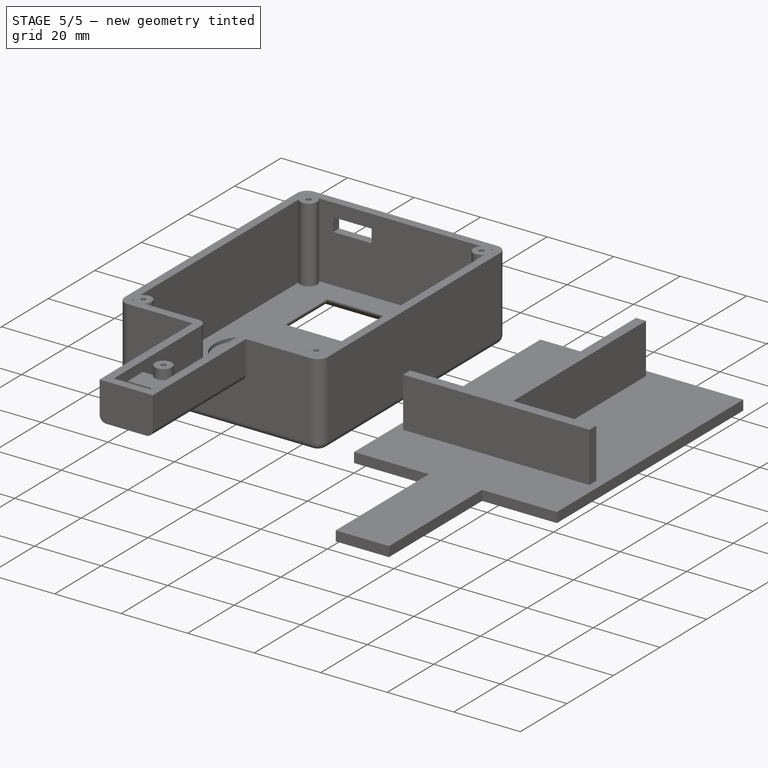
[diagram: stage 5 of 5 — iso view after this stage's code; geometry added in this stage tinted green]
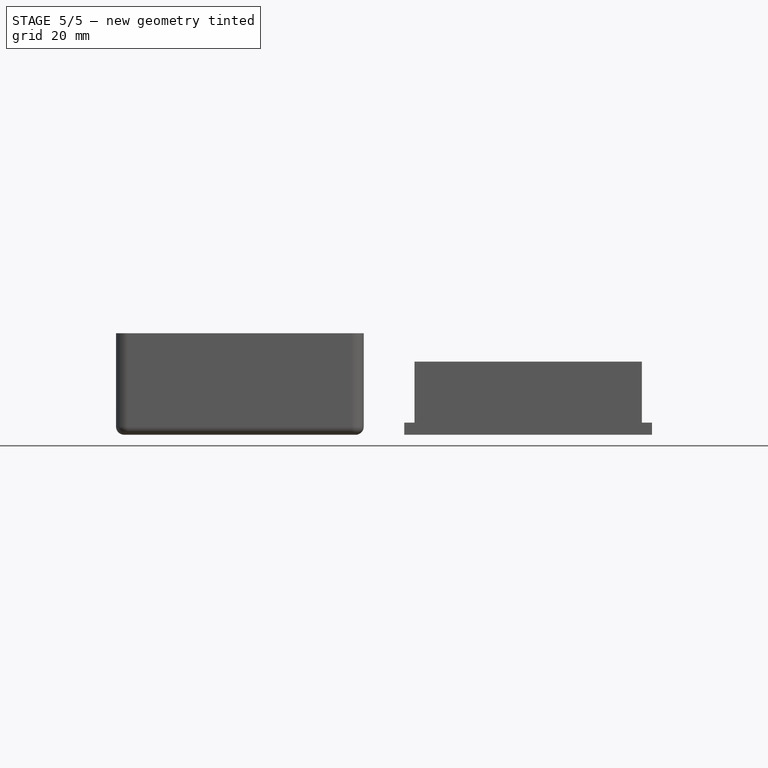
[diagram: stage 5 of 5 — front view after this stage's code; geometry added in this stage tinted green]
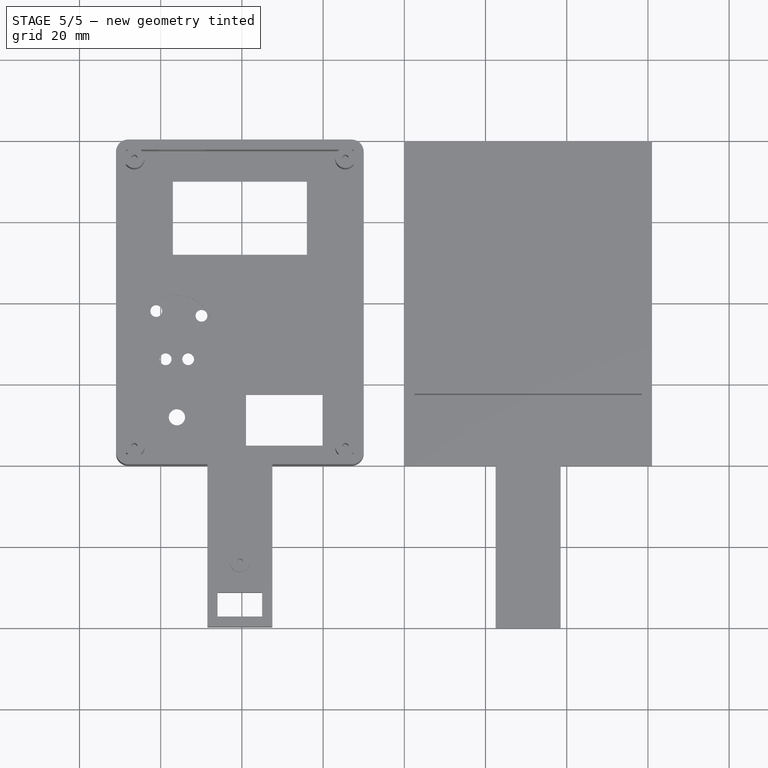
[diagram: stage 5 of 5 — top view after this stage's code; geometry added in this stage tinted green]
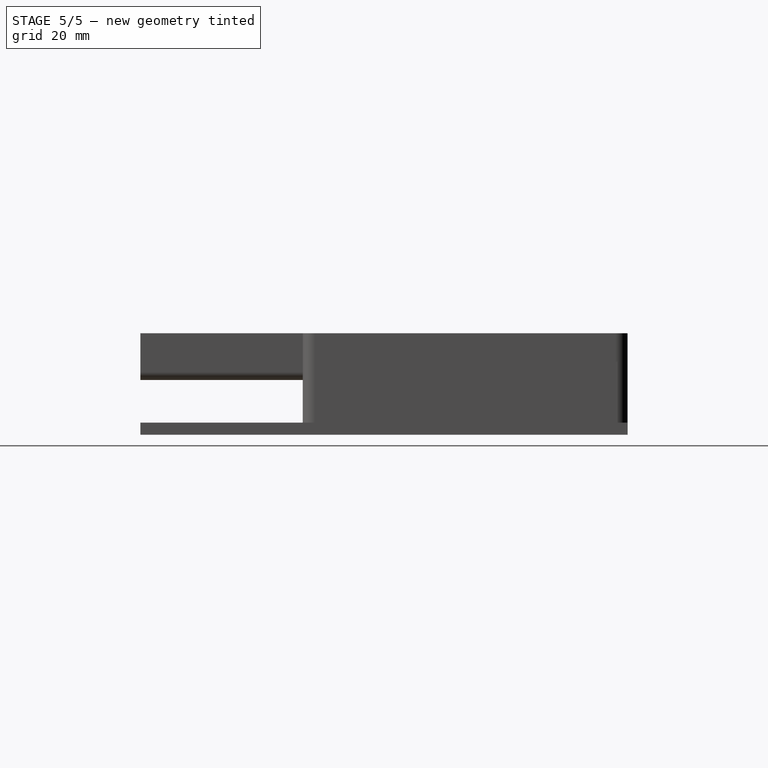
[diagram: stage 5 of 5 — right view after this stage's code; geometry added in this stage tinted green]
FEATURE [Sketcher::SketchObject] Sketch
  FullyConstrained = false
  MapMode = 5
  Support = -> [XY_Plane001]
  sketch-geometry (8):
    g0: LineSegment StartX=0 StartY=0 StartZ=0 EndX=22.5 EndY=0 EndZ=0
    g1: LineSegment StartX=61 StartY=0 StartZ=0 EndX=61 EndY=80 EndZ=0
    g2: LineSegment StartX=61 StartY=80 StartZ=0 EndX=0 EndY=80 EndZ=0
    g3: LineSegment StartX=0 StartY=80 StartZ=0 EndX=0 EndY=0 EndZ=0
    g4: LineSegment StartX=22.5 StartY=-40 StartZ=0 EndX=38.5 EndY=-40 EndZ=0
    g5: LineSegment StartX=38.5 StartY=-40 StartZ=0 EndX=38.5 EndY=0 EndZ=0
    g6: LineSegment StartX=22.5 StartY=0 StartZ=0 EndX=22.5 EndY=-40 EndZ=0
    g7: LineSegment StartX=38.5 StartY=0 StartZ=0 EndX=61 EndY=0 EndZ=0
  constraints (23):
    c: Coincident(g7,g1)
    c: Coincident(g1,g2)
    c: Coincident(g2,g3)
    c: Coincident(g3,g0)
    c: Horizontal(g0)
    c: Horizontal(g2)
    c: Vertical(g1)
    c: Vertical(g3)
    c: Coincident(g0,g-1)
    c: Distance(g2) = 61
    c: Distance(g1) = 80
    c: Coincident(g4,g5)
    c: Coincident(g6,g4)
    c: Horizontal(g4)
    c: Vertical(g5)
    c: Vertical(g6)
    c: Distance(g4) = 16
    c: Distance(g5) = 40
    c: DistanceX(g-2,g4) = 22.5
    c: Coincident(g7,g5)
    c: DistanceY(g5,g1) = 0
    c: DistanceY(g0,g5) = 0
    c: DistanceX(g0,g4) = 0
FEATURE [PartDesign::Pad] Pad
  Direction = (0,0,1)
  Length = 3
  Length2 = 10
  Profile = -> Sketch
  ReferenceAxis = -> Sketch [N_Axis]
  Type = 0
FEATURE [Sketcher::SketchObject] Sketch001
  ExternalGeometry = -> [Pad]
  FullyConstrained = true
  MapMode = 5
  Placement = pos=(0,0,3) rot=(0,0,1;0rad)
  Support = -> [Pad]
  sketch-geometry (8):
    g0: LineSegment StartX=30.5 StartY=77.5 StartZ=0 EndX=33.5 EndY=77.5 EndZ=0
    g1: LineSegment StartX=33.5 StartY=77.5 StartZ=0 EndX=33.5 EndY=20.5 EndZ=0
    g2: LineSegment StartX=30.5 StartY=20.5 StartZ=0 EndX=30.5 EndY=77.5 EndZ=0
    g3: LineSegment StartX=2.5 StartY=17.5 StartZ=0 EndX=58.5 EndY=17.5 EndZ=0
    g4: LineSegment StartX=58.5 StartY=17.5 StartZ=0 EndX=58.5 EndY=20.5 EndZ=0
    g5: LineSegment StartX=58.5 StartY=20.5 StartZ=0 EndX=33.5 EndY=20.5 EndZ=0
    g6: LineSegment StartX=2.5 StartY=20.5 StartZ=0 EndX=2.5 EndY=17.5 EndZ=0
    g7: LineSegment StartX=2.5 StartY=20.5 StartZ=0 EndX=30.5 EndY=20.5 EndZ=0
  constraints (24):
    c: Coincident(g0,g1)
    c: Coincident(g2,g0)
    c: Horizontal(g0)
    c: Vertical(g1)
    c: Vertical(g2)
    c: Distance(g2,g-2) = 30.5
    c: Distance(g2,g-5) = 20.5
    c: DistanceY(g2,g2) = 57
    c: DistanceX(g0,g0) = 3
    c: Coincident(g3,g4)
    c: Coincident(g4,g5)
    c: Coincident(g6,g3)
    c: Horizontal(g3)
    c: Horizontal(g5)
    c: Vertical(g4)
    c: Vertical(g6)
    c: DistanceY(g4,g4) = 3
    c: DistanceY(g-5,g3) = 17.5
    c: DistanceX(g-1,g3) = 2.5
    c: Distance(g3) = 56
    c: Coincident(g7,g6)
    c: Coincident(g7,g2)
    c: Horizontal(g7)
    c: Coincident(g1,g5)
FEATURE [PartDesign::Pad] Pad001
  BaseFeature = -> Pad
  Direction = (0,0,1)
  Length = 15
  Length2 = 10
  Profile = -> Sketch001
  ReferenceAxis = -> Sketch001 [N_Axis]
  Type = 0
FEATURE [PartDesign::FeatureBase] BaseFeature
  BaseFeature = -> Pad004
FEATURE [PartDesign::Pocket] Pocket008
  BaseFeature = -> BaseFeature
  Direction = (0,0,1)
  Length = 5
  Length2 = 5
  Profile = -> Sketch019
  ReferenceAxis = -> Sketch019 [N_Axis]
  Type = 0
FEATURE [PartDesign::Hole] Hole
  BaseFeature = -> Pocket008
  CustomThreadClearance = 0
  Depth = 1.5
  DepthType = 0
  Diameter = 4
  DrillForDepth = false
  DrillPoint = 0
  DrillPointAngle = 118
  HoleCutCountersinkAngle = 90
  HoleCutCustomValues = false
  HoleCutDepth = 0
  HoleCutDiameter = 6.1
  HoleCutType = 0
  ModelThread = false
  Profile = -> Pocket008 [Edge17,Edge16,Edge18,Edge19,Edge20]
  Reversed = true
  Tapered = false
  TaperedAngle = 90
  ThreadClass = 0
  ThreadDepth = 1.5
  ThreadDepthType = 0
  ThreadDirection = 0
  ThreadFit = 0
  ThreadSize = 0
  ThreadType = 0
  Threaded = false
  UseCustomThreadClearance = false
FEATURE [PartDesign::Fillet] Fillet
  Base = -> Hole [Edge39]
  BaseFeature = -> Hole
  Radius = 3
  SupportTransform = false
  UseAllEdges = false
FEATURE [PartDesign::Fillet] Fillet004
  Base = -> Fillet [Edge22,Edge20,Edge16]
  BaseFeature = -> Fillet
  Radius = 3
  SupportTransform = false
  UseAllEdges = false
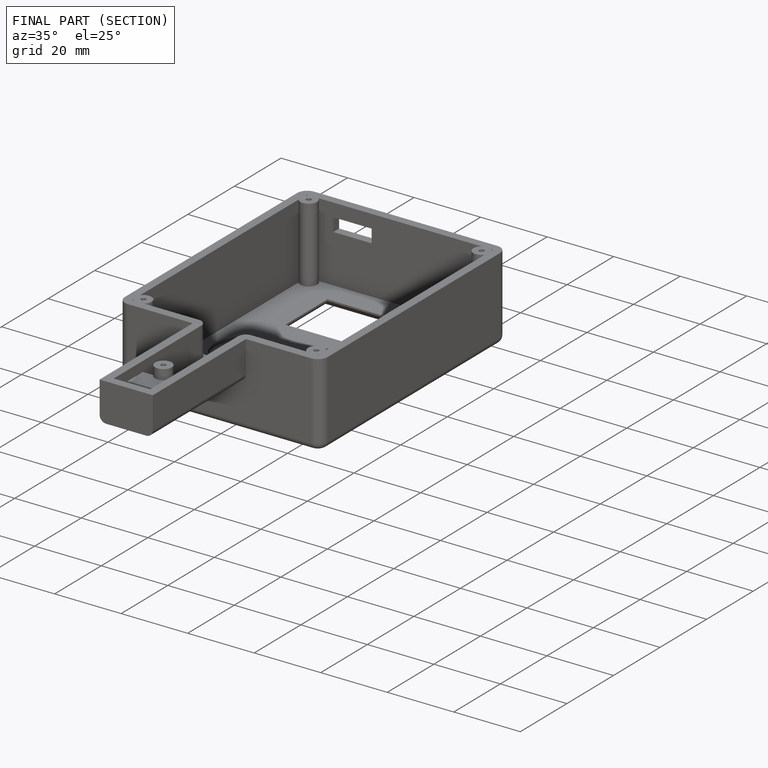
[diagram: finished part — half-section view (interior)]
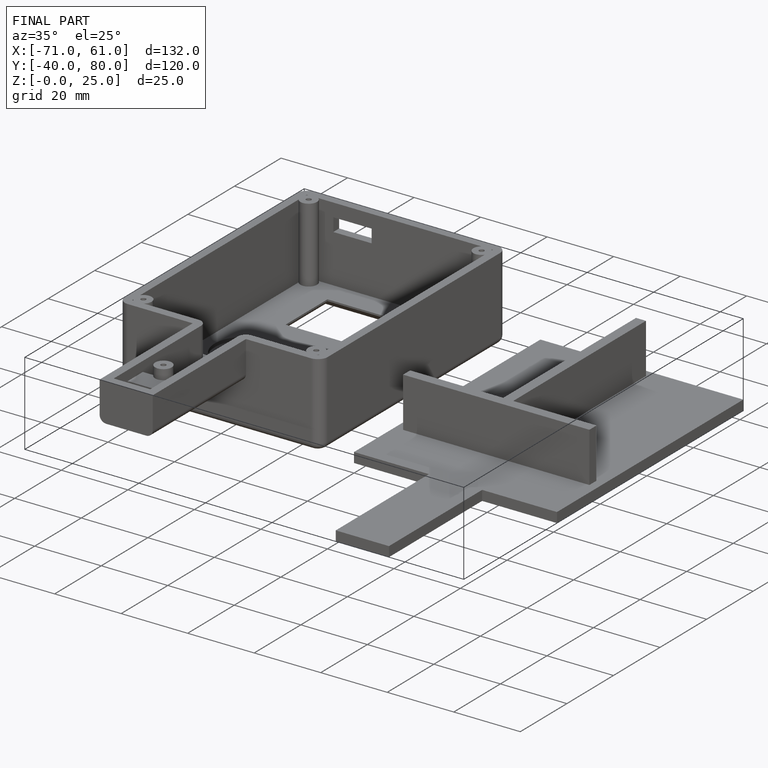
[diagram: finished part — iso view with bounding-box wireframe]
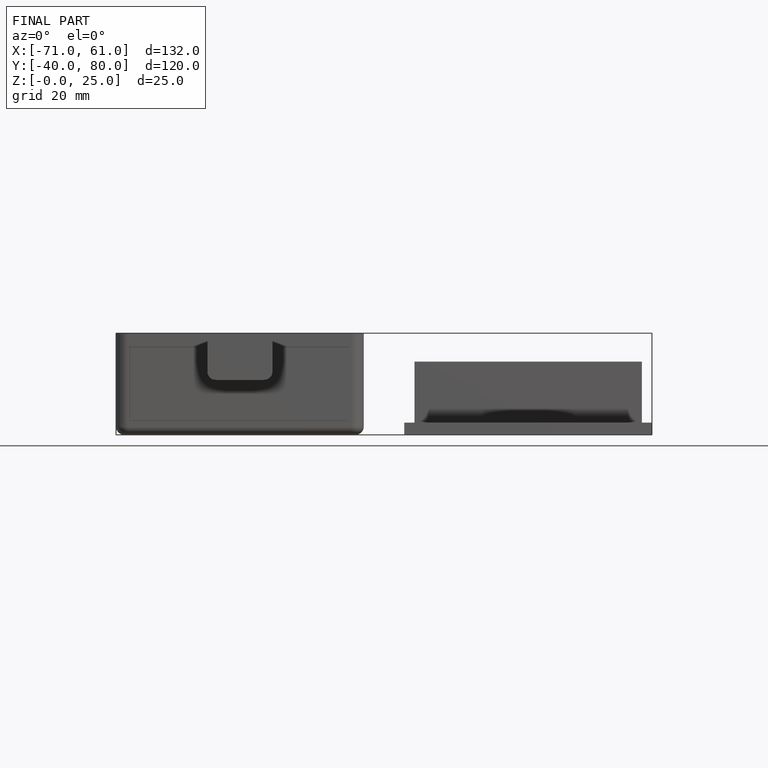
[diagram: finished part — front view with bounding-box wireframe]
